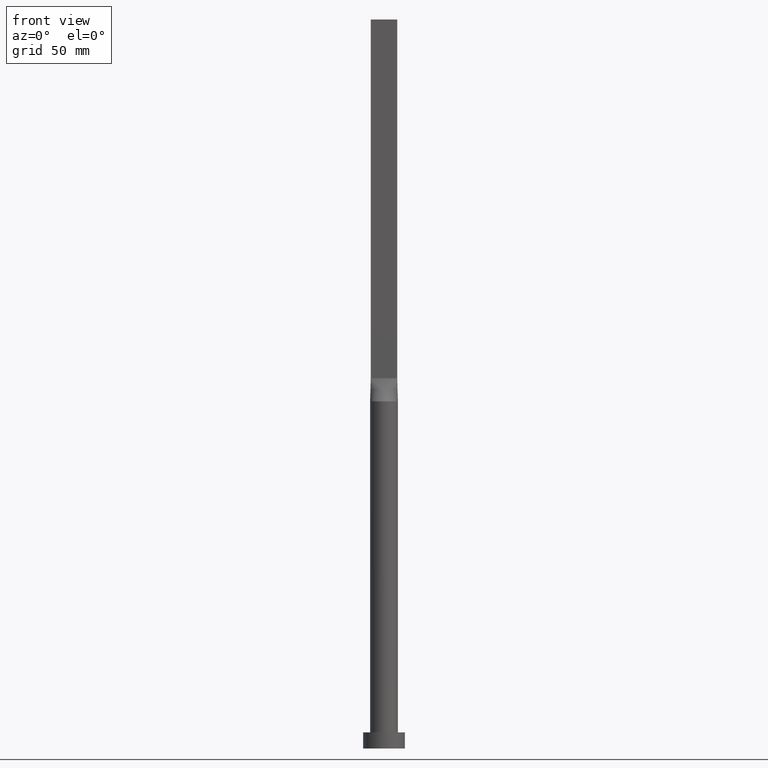
[diagram: clean part render]
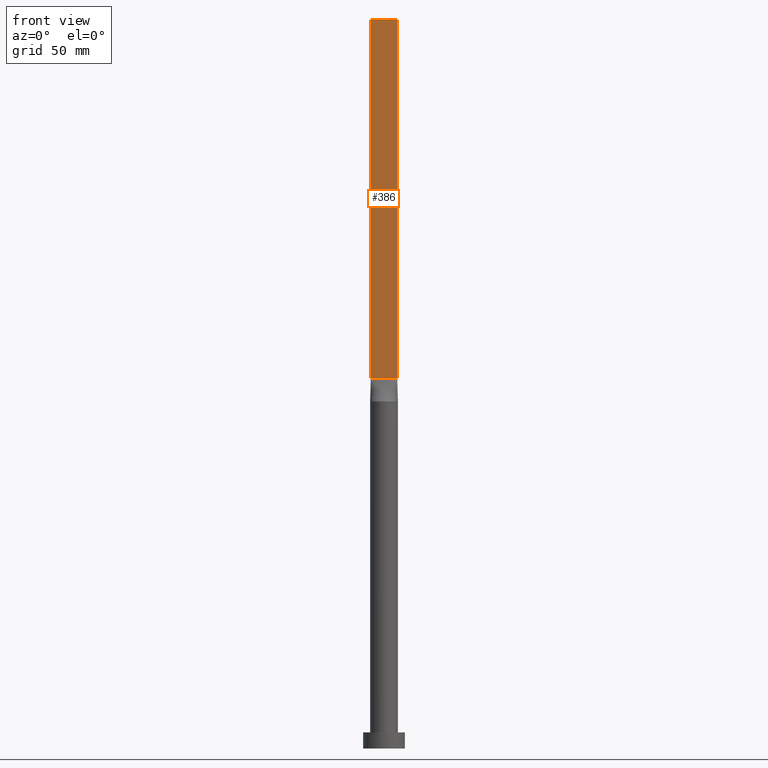
[diagram: same view with one face highlighted and labeled with its STEP entity id]
A machine part, front view. The second image highlights one B-rep face of the part: STEP entity #386.
In plain terms, the highlighted planar face has unit normal (0, 1, -0).
Its self-contained STEP definition (entity closure, byte-faithful):
#11 = LINE ( 'NONE', #212, #25 ) ;
#25 = VECTOR ( 'NONE', #123, 1000.000000000000000 ) ;
#26 = CARTESIAN_POINT ( 'NONE',  ( 5.750000000000000000, -0.9999999999999997780, 315.0000000000000000 ) ) ;
#36 = EDGE_CURVE ( 'NONE', #135, #552, #221, .T. ) ;
#39 = DIRECTION ( 'NONE',  ( 7.542275982507857147E-17, 1.000000000000000000, -0.000000000000000000 ) ) ;
#70 = ORIENTED_EDGE ( 'NONE', *, *, #273, .T. ) ;
#82 = PLANE ( 'NONE',  #366 ) ;
#86 = DIRECTION ( 'NONE',  ( -1.000000000000000000, 7.542275982507857147E-17, 0.000000000000000000 ) ) ;
#107 = ORIENTED_EDGE ( 'NONE', *, *, #36, .F. ) ;
#111 = VERTEX_POINT ( 'NONE', #515 ) ;
#120 = CARTESIAN_POINT ( 'NONE',  ( -5.750000000000000000, -0.9999999999999988898, 160.0000000000000000 ) ) ;
#123 = DIRECTION ( 'NONE',  ( 1.000000000000000000, -7.542275982507857147E-17, 0.000000000000000000 ) ) ;
#132 = DIRECTION ( 'NONE',  ( -0.000000000000000000, -0.000000000000000000, -1.000000000000000000 ) ) ;
#135 = VERTEX_POINT ( 'NONE', #563 ) ;
#172 = LINE ( 'NONE', #504, #395 ) ;
#180 = FACE_OUTER_BOUND ( 'NONE', #597, .T. ) ;
#207 = VERTEX_POINT ( 'NONE', #120 ) ;
#212 = CARTESIAN_POINT ( 'NONE',  ( -5.750000000000000000, -0.9999999999999988898, 160.0000000000000000 ) ) ;
#215 = DIRECTION ( 'NONE',  ( -0.000000000000000000, -0.000000000000000000, -1.000000000000000000 ) ) ;
#221 = LINE ( 'NONE', #555, #506 ) ;
#271 = ORIENTED_EDGE ( 'NONE', *, *, #295, .F. ) ;
#273 = EDGE_CURVE ( 'NONE', #207, #111, #11, .T. ) ;
#295 = EDGE_CURVE ( 'NONE', #552, #111, #362, .T. ) ;
#319 = DIRECTION ( 'NONE',  ( 1.000000000000000000, -7.542275982507857147E-17, 0.000000000000000000 ) ) ;
#361 = ORIENTED_EDGE ( 'NONE', *, *, #618, .T. ) ;
#362 = LINE ( 'NONE', #404, #543 ) ;
#366 = AXIS2_PLACEMENT_3D ( 'NONE', #373, #39, #86 ) ;
#373 = CARTESIAN_POINT ( 'NONE',  ( -5.750000000000000000, -0.9999999999999988898, 315.0000000000000000 ) ) ;
#386 = ADVANCED_FACE ( 'NONE', ( #180 ), #82, .F. ) ;
#395 = VECTOR ( 'NONE', #132, 1000.000000000000000 ) ;
#404 = CARTESIAN_POINT ( 'NONE',  ( 5.750000000000000000, -0.9999999999999997780, 315.0000000000000000 ) ) ;
#504 = CARTESIAN_POINT ( 'NONE',  ( -5.750000000000000000, -0.9999999999999988898, 315.0000000000000000 ) ) ;
#506 = VECTOR ( 'NONE', #319, 1000.000000000000000 ) ;
#515 = CARTESIAN_POINT ( 'NONE',  ( 5.750000000000000000, -0.9999999999999997780, 160.0000000000000000 ) ) ;
#543 = VECTOR ( 'NONE', #215, 1000.000000000000000 ) ;
#552 = VERTEX_POINT ( 'NONE', #26 ) ;
#555 = CARTESIAN_POINT ( 'NONE',  ( -5.750000000000000000, -0.9999999999999988898, 315.0000000000000000 ) ) ;
#563 = CARTESIAN_POINT ( 'NONE',  ( -5.750000000000000000, -0.9999999999999988898, 315.0000000000000000 ) ) ;
#597 = EDGE_LOOP ( 'NONE', ( #70, #271, #107, #361 ) ) ;
#618 = EDGE_CURVE ( 'NONE', #135, #207, #172, .T. ) ;